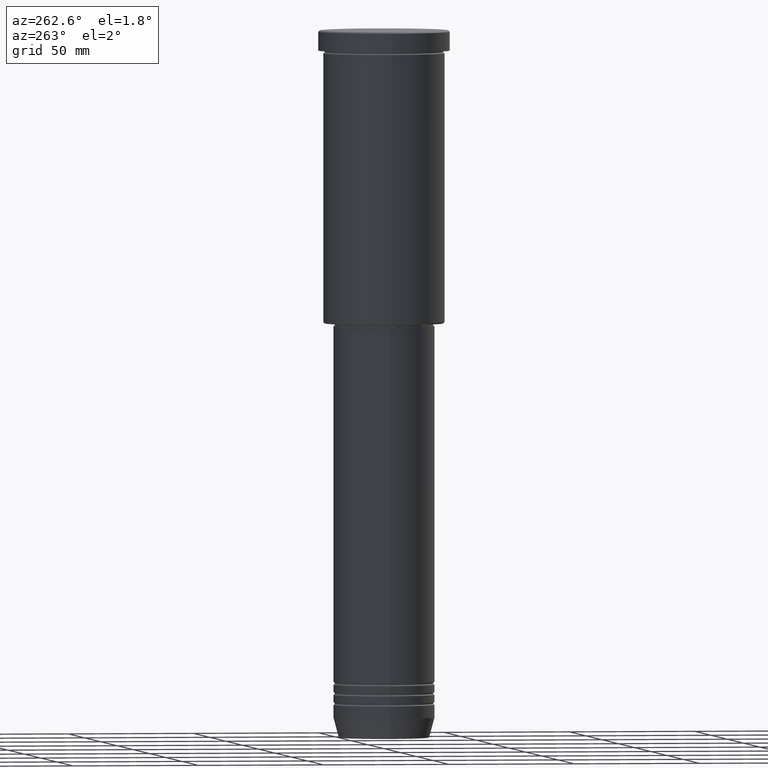
[diagram: clean part render]
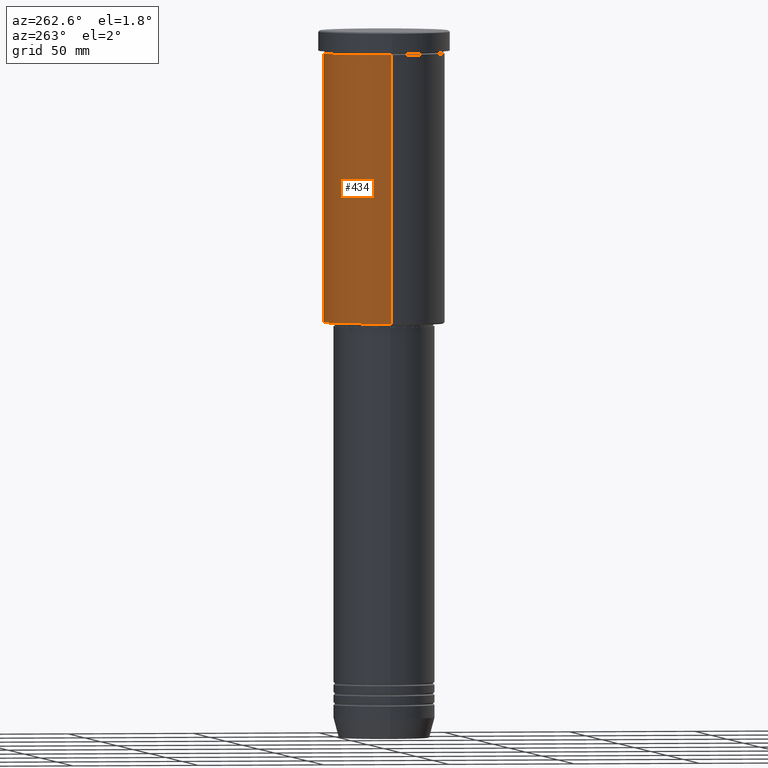
[diagram: same view with one face highlighted and labeled with its STEP entity id]
A machine part, auxiliary view. The second image highlights one B-rep face of the part: STEP entity #434.
In plain terms, the highlighted cylindrical surface (partial cylindrical patch) has radius 24 mm, axis along (-0, -0, 1).
Its self-contained STEP definition (entity closure, byte-faithful):
#12 = EDGE_LOOP ( 'NONE', ( #274, #772, #1139, #280 ) ) ;
#31 = CARTESIAN_POINT ( 'NONE',  ( 0.000000000000000000, 0.000000000000000000, -8.999999999999994671 ) ) ;
#203 = AXIS2_PLACEMENT_3D ( 'NONE', #624, #605, #977 ) ;
#204 = AXIS2_PLACEMENT_3D ( 'NONE', #31, #847, #471 ) ;
#274 = ORIENTED_EDGE ( 'NONE', *, *, #475, .T. ) ;
#280 = ORIENTED_EDGE ( 'NONE', *, *, #335, .F. ) ;
#286 = VERTEX_POINT ( 'NONE', #752 ) ;
#335 = EDGE_CURVE ( 'NONE', #286, #856, #387, .T. ) ;
#354 = DIRECTION ( 'NONE',  ( -0.000000000000000000, -0.000000000000000000, 1.000000000000000000 ) ) ;
#366 = CARTESIAN_POINT ( 'NONE',  ( -24.00000000000000000, 2.939152317953647894E-15, 0.000000000000000000 ) ) ;
#374 = VECTOR ( 'NONE', #1136, 1000.000000000000000 ) ;
#387 = LINE ( 'NONE', #764, #374 ) ;
#424 = CARTESIAN_POINT ( 'NONE',  ( -24.00000000000000000, 2.939152317953647894E-15, -115.4999999999999289 ) ) ;
#426 = CARTESIAN_POINT ( 'NONE',  ( 0.000000000000000000, 0.000000000000000000, -115.4999999999999289 ) ) ;
#434 = ADVANCED_FACE ( 'NONE', ( #884 ), #618, .T. ) ;
#471 = DIRECTION ( 'NONE',  ( 1.000000000000000000, 0.000000000000000000, 0.000000000000000000 ) ) ;
#475 = EDGE_CURVE ( 'NONE', #286, #1064, #528, .T. ) ;
#528 = CIRCLE ( 'NONE', #781, 24.00000000000000000 ) ;
#566 = CARTESIAN_POINT ( 'NONE',  ( -24.00000000000000000, 2.939152317953647894E-15, -8.999999999999994671 ) ) ;
#605 = DIRECTION ( 'NONE',  ( -0.000000000000000000, -0.000000000000000000, 1.000000000000000000 ) ) ;
#618 = CYLINDRICAL_SURFACE ( 'NONE', #203, 24.00000000000000000 ) ;
#624 = CARTESIAN_POINT ( 'NONE',  ( 0.000000000000000000, 0.000000000000000000, 0.000000000000000000 ) ) ;
#627 = VECTOR ( 'NONE', #354, 1000.000000000000000 ) ;
#635 = CARTESIAN_POINT ( 'NONE',  ( 24.00000000000000000, 0.000000000000000000, -8.999999999999994671 ) ) ;
#697 = EDGE_CURVE ( 'NONE', #856, #905, #958, .T. ) ;
#736 = EDGE_CURVE ( 'NONE', #1064, #905, #824, .T. ) ;
#752 = CARTESIAN_POINT ( 'NONE',  ( 24.00000000000000000, 0.000000000000000000, -115.4999999999999289 ) ) ;
#764 = CARTESIAN_POINT ( 'NONE',  ( 24.00000000000000000, 0.000000000000000000, 0.000000000000000000 ) ) ;
#772 = ORIENTED_EDGE ( 'NONE', *, *, #736, .T. ) ;
#781 = AXIS2_PLACEMENT_3D ( 'NONE', #426, #1083, #797 ) ;
#797 = DIRECTION ( 'NONE',  ( -1.000000000000000000, 0.000000000000000000, 0.000000000000000000 ) ) ;
#824 = LINE ( 'NONE', #366, #627 ) ;
#847 = DIRECTION ( 'NONE',  ( -0.000000000000000000, -0.000000000000000000, 1.000000000000000000 ) ) ;
#856 = VERTEX_POINT ( 'NONE', #635 ) ;
#884 = FACE_OUTER_BOUND ( 'NONE', #12, .T. ) ;
#905 = VERTEX_POINT ( 'NONE', #566 ) ;
#958 = CIRCLE ( 'NONE', #204, 24.00000000000000000 ) ;
#977 = DIRECTION ( 'NONE',  ( 1.000000000000000000, 0.000000000000000000, 0.000000000000000000 ) ) ;
#1064 = VERTEX_POINT ( 'NONE', #424 ) ;
#1083 = DIRECTION ( 'NONE',  ( -0.000000000000000000, -0.000000000000000000, 1.000000000000000000 ) ) ;
#1136 = DIRECTION ( 'NONE',  ( -0.000000000000000000, -0.000000000000000000, 1.000000000000000000 ) ) ;
#1139 = ORIENTED_EDGE ( 'NONE', *, *, #697, .F. ) ;